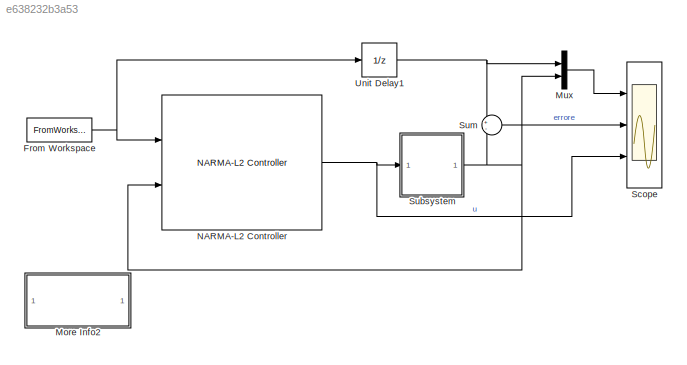
MODEL mdl_e638232b3a53
KIND model
CONFIG AbsTol = auto
CONFIG EnableMultiTasking = on
CONFIG FixedStep = auto
CONFIG MaxStep = auto
CONFIG MinStep = auto
CONFIG RelTol = 1e-3
CONFIG SampleTimeConstraint = Unconstrained
CONFIG SolverName = ode3
CONFIG StartTime = 0.0
CONFIG StopTime = 1000
BLOCK [FromWorkspace] From Workspace
  SampleTime = 1
  VariableName = yr
BLOCK [SubSystem] More Info2
  OpenFcn = t=0:1000;y=2*sin(2*pi*t/50)+2*sin(2*pi*t/100);yr=[t' y']; warning off;
  Ports = []
  RequestExecContextInheritance = off
BLOCK [Mux] Mux
  DisplayOption = bar
  Inputs = 2
  Ports = [2, 1]
BLOCK [Reference] NARMA-L2 Controller  REF=neural/Control Systems/NARMA-L2 Controller
  NameLocation = top
  Ports = [2, 1]
  SourceBlock = neural/Control Systems/NARMA-L2 Controller
  SourceProductBaseCode = NN
  SourceType = NARMA-L2 Controller
BLOCK [Scope] Scope
  Floating = off
  NumInputPorts = 3
  Ports = [3]
  ScopeSpecificationString = Simulink.scopes.TimeScopeBlockCfg('CurrentConfiguration', extmgr.ConfigurationSet(extmgr.Configuration('Core','General UI',true),extmgr.Configuration('Core','Source UI',true),extmgr.Configuration('Sources','WiredSimulink',true,'DataLoggingSaveFormat','StructureWithTime','DataLoggingLimitDataPoints',true,'DataLoggingDecimation','1','DataLoggingDecimateData',true),extmgr.Configuration('Visuals','Tim...<+3043ch>
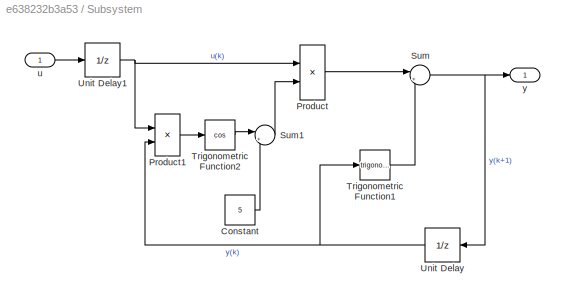
BLOCK [SubSystem] Subsystem
  Ports = [1, 1]
  RequestExecContextInheritance = off
BLOCK [Constant] Subsystem/Constant
  Value = 5
BLOCK [Product] Subsystem/Product
  Ports = [2, 1]
  RndMeth = Zero
BLOCK [Product] Subsystem/Product1
  Ports = [2, 1]
  RndMeth = Zero
BLOCK [Sum] Subsystem/Sum
  Inputs = |++
  Ports = [2, 1]
BLOCK [Sum] Subsystem/Sum1
  Inputs = |++
  Ports = [2, 1]
BLOCK [Trigonometry] Subsystem/Trigonometric Function1
  Ports = [1, 1]
BLOCK [Trigonometry] Subsystem/Trigonometric Function2
  Operator = cos
  Ports = [1, 1]
BLOCK [UnitDelay] Subsystem/Unit Delay
BLOCK [UnitDelay] Subsystem/Unit Delay1
BLOCK [Inport] Subsystem/u
BLOCK [Outport] Subsystem/y
BLOCK [Sum] Sum
  Inputs = +-
  Ports = [2, 1]
BLOCK [UnitDelay] Unit Delay1
NET From Workspace:1 -> NARMA-L2 Controller:1, Unit Delay1:1
LINE Mux:1 -> Scope:1
NET NARMA-L2 Controller:1 -> Scope:3, Subsystem:1
LINE Subsystem/Constant:1 -> Subsystem/Sum1:2
LINE Subsystem/Product1:1 -> Subsystem/Trigonometric Function2:1
LINE Subsystem/Product:1 -> Subsystem/Sum:1
LINE Subsystem/Sum1:1 -> Subsystem/Product:2
NET Subsystem/Sum:1 -> Subsystem/Unit Delay:1, Subsystem/y:1
LINE Subsystem/Trigonometric Function1:1 -> Subsystem/Sum:2
LINE Subsystem/Trigonometric Function2:1 -> Subsystem/Sum1:1
NET Subsystem/Unit Delay1:1 -> Subsystem/Product1:1, Subsystem/Product:1
NET Subsystem/Unit Delay:1 -> Subsystem/Product1:2, Subsystem/Trigonometric Function1:1
LINE Subsystem/u:1 -> Subsystem/Unit Delay1:1
NET Subsystem:1 -> Mux:2, NARMA-L2 Controller:2, Sum:2
LINE Sum:1 -> Scope:2
NET Unit Delay1:1 -> Mux:1, Sum:1
note: NET lines group one-source signal fan-out (src -> all destinations, sorted); 1:1 wires keep LINE
